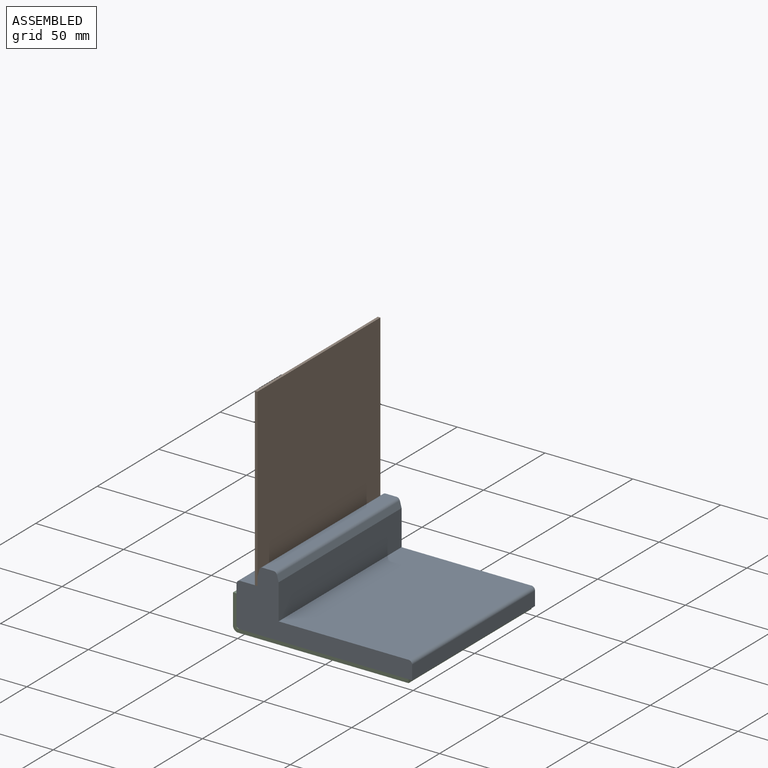
[diagram: assembled view]
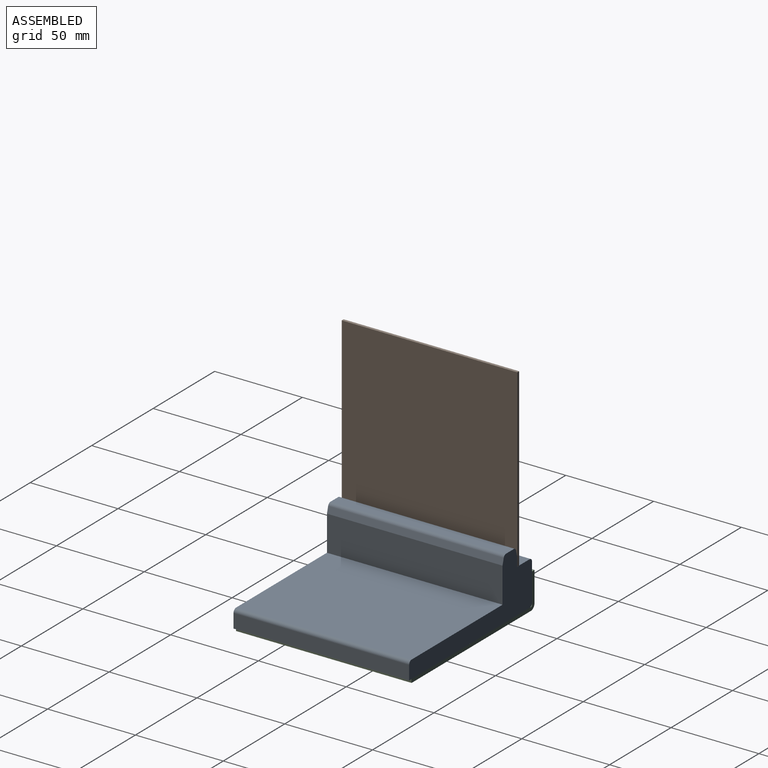
[diagram: assembled view, second angle]
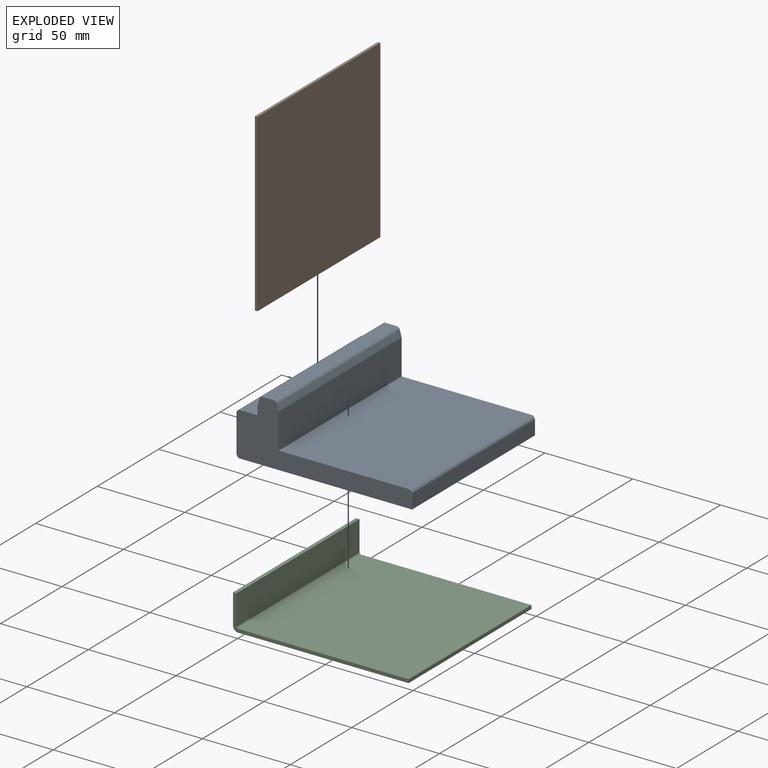
[diagram: exploded view]
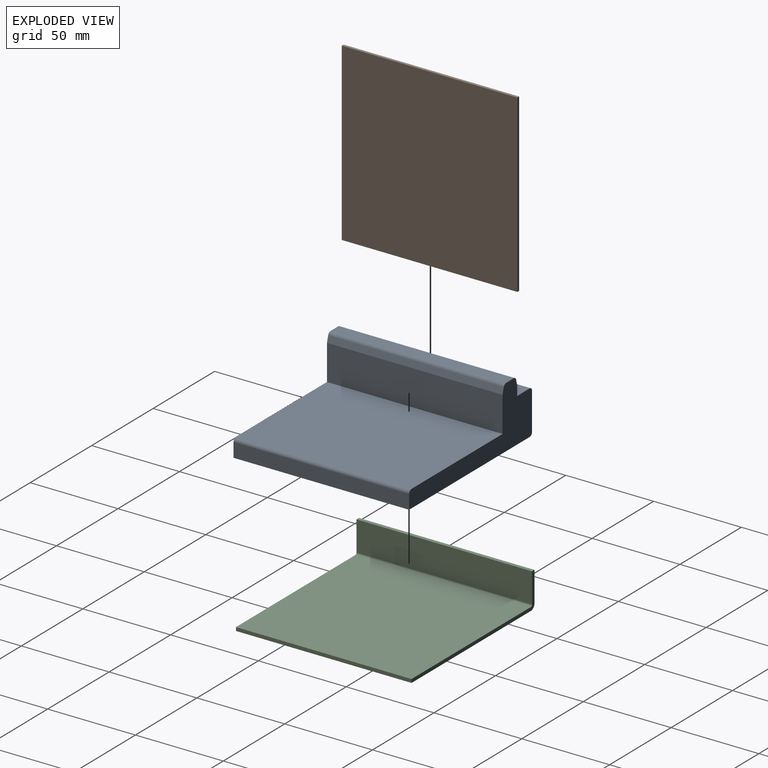
[diagram: exploded view, second angle]
ASSEMBLY  parts=3 mates=3
PART A: 17 faces, bbox 100x100x35.2 mm
  f0: plane 100x10mm, normal (0,0,1), area 1000mm2, adj f9,f10,f11,f12
  f1: plane 100x21mm, normal (-1,0,0), area 2100mm2, adj f10,f11,f12,f13
  f2: plane 100x98mm, normal (0,0,-1), area 9800mm2, adj f3,f10,f11,f13
  f3: plane 100x8mm, normal (1,0,0), area 800mm2, adj f2,f10,f11,f14
  f4: plane 100x74mm, normal (0,0,1), area 7400mm2, adj f5,f10,f11,f14
  f5: plane 100x20.1mm, normal (1,0,0), area 2010.1mm2, adj f4,f6,f10,f11
  f6: plane 100x3.58mm, normal (0.97,0,0.26), area 370.6mm2, adj f5,f10,f11,f15
  f7: plane 100x6.2mm, normal (0,0,1), area 619.5mm2, adj f10,f11,f15,f16
  f8: plane 100x3.66mm, normal (-0.97,0,0.26), area 379.3mm2, adj f9,f10,f11,f16
  f9: plane 100x5.02mm, normal (-1,0,0), area 501.8mm2, adj f0,f8,f10,f11
  f10: plane 100x35.16mm, normal (0,-1,0), area 1471.5mm2, adj f0,f1,f2,f3,f4,f5,f6,f7
  f11: plane 100x35.16mm, normal (0,1,0), area 1471.5mm2, adj f0,f1,f2,f3,f4,f5,f6,f7
  f12: cylinder r=2mm len=100mm, axis (0,1,0), area 314.2mm2, adj f0,f1,f10,f11
  f13: cylinder r=2mm len=100mm, axis (0,-1,0), area 314.2mm2, adj f1,f2,f10,f11
  f14: cylinder r=2mm len=100mm, axis (0,-1,0), area 314.2mm2, adj f3,f4,f10,f11
  f15: cylinder r=2mm len=100mm, axis (0,1,0), area 261.8mm2, adj f6,f7,f10,f11
  f16: cylinder r=2mm len=100mm, axis (0,-1,0), area 261.8mm2, adj f7,f8,f10,f11
PART B: 6 faces, bbox 1.5x100x100 mm
  f0: plane 100x1.5mm, normal (0,1,0), area 150mm2, adj f1,f3,f4,f5
  f1: plane 100x1.5mm, normal (0,0,1), area 150mm2, adj f0,f2,f4,f5
  f2: plane 100x1.5mm, normal (0,-1,0), area 150mm2, adj f1,f3,f4,f5
  f3: plane 100x1.5mm, normal (0,0,-1), area 150mm2, adj f0,f2,f4,f5
  f4: plane 100x100mm, normal (1,0,0), area 10000mm2, adj f0,f1,f2,f3
  f5: plane 100x100mm, normal (-1,0,0), area 10000mm2, adj f0,f1,f2,f3
PART C: 14 faces, bbox 100x100x20 mm
  f0: plane 17x2mm, normal (0,1,0), area 34mm2, adj f1,f3,f4,f11
  f1: plane 100x2mm, normal (0,0,1), area 200mm2, adj f0,f2,f3,f4
  f2: plane 17x2mm, normal (0,-1,0), area 34mm2, adj f1,f3,f4,f10
  f3: plane 100x17mm, normal (1,0,0), area 1700mm2, adj f0,f1,f2,f13
  f4: plane 100x17mm, normal (-1,0,0), area 1700mm2, adj f0,f1,f2,f12
  f5: plane 97x2mm, normal (0,1,0), area 194mm2, adj f7,f8,f9,f11
  f6: plane 97x2mm, normal (0,-1,0), area 194mm2, adj f7,f8,f9,f10
  f7: plane 100x2mm, normal (1,0,0), area 200mm2, adj f5,f6,f8,f9
  f8: plane 100x97mm, normal (0,0,1), area 9700mm2, adj f5,f6,f7,f13
  f9: plane 100x97mm, normal (0,0,-1), area 9700mm2, adj f5,f6,f7,f12
  f10: plane 3x3mm, normal (0,-1,0), area 6.3mm2, adj f2,f6,f12,f13
  f11: plane 3x3mm, normal (0,1,0), area 6.3mm2, adj f0,f5,f12,f13
  f12: cylinder r=3mm len=100mm, axis (0,-1,0), area 471.2mm2, adj f4,f9,f10,f11
  f13: cylinder r=1mm len=100mm, axis (0,-1,0), area 157.1mm2, adj f3,f8,f10,f11
PLACE A t=(-20.28,56.67,-20.42)mm
PLACE B t=(-9.81,56.65,4.58)mm
PLACE C t=(-22.28,56.67,-22.42)mm fixed
MATE planar A.f2 <-> C.f8  axis (0,0,-1) through (30.72,6.67,-20.42)mm
MATE planar B.f3 <-> A.f0  axis (0,0,-1) through (-9.06,6.65,4.58)mm
MATE planar A.f1 <-> C.f3  axis (-1,0,0) through (-20.28,6.67,-7.92)mm
